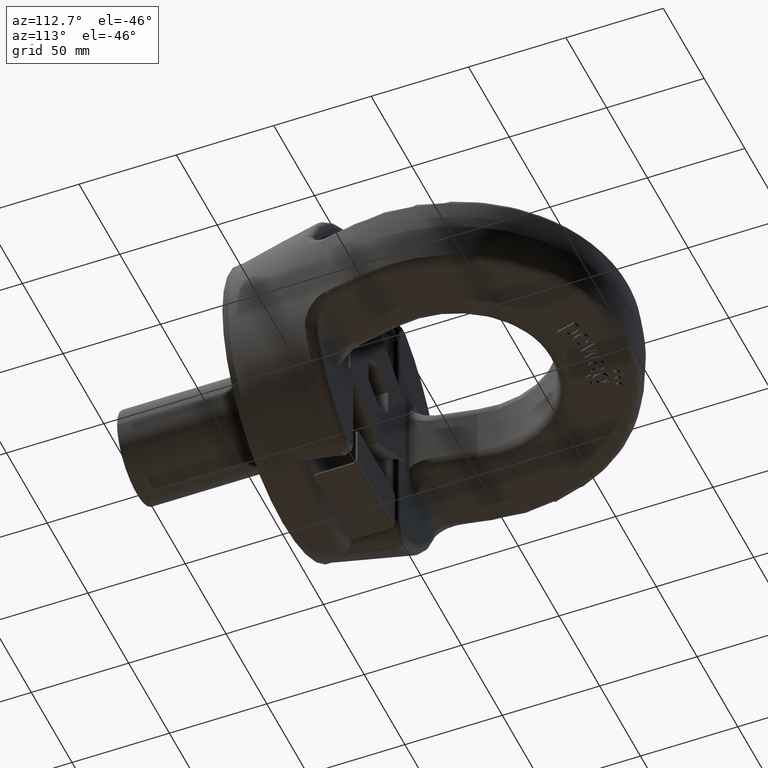
[diagram: clean part render]
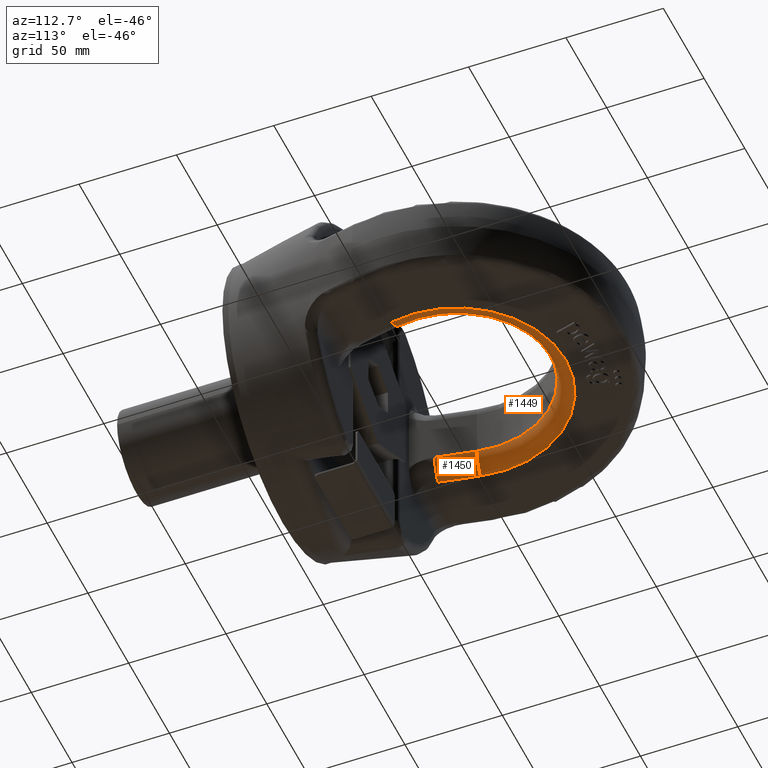
[diagram: same view with one multi-face feature highlighted, each face labeled with its STEP entity id]
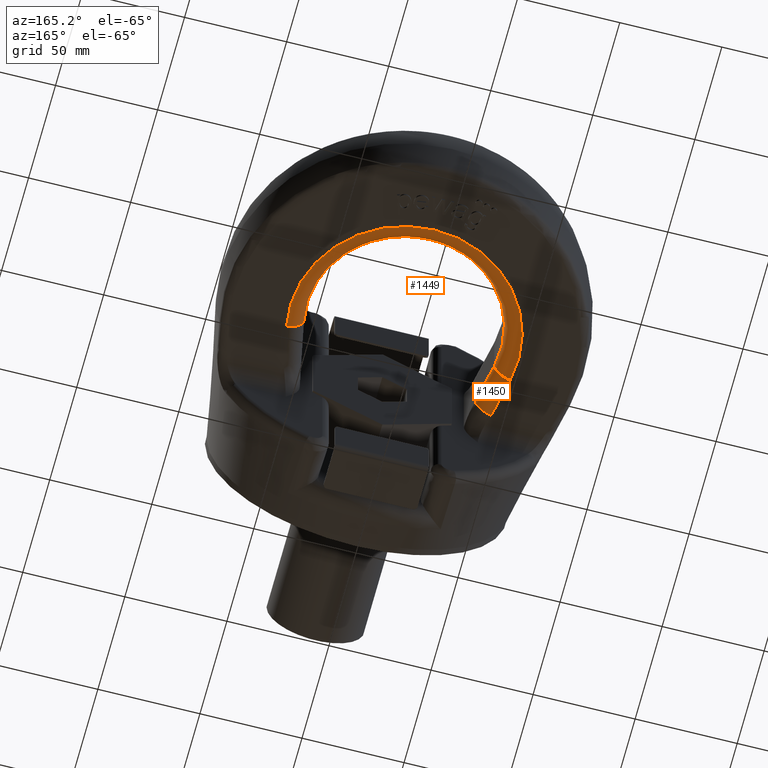
[diagram: same view with one multi-face feature highlighted, each face labeled with its STEP entity id]
A machine part, auxiliary view. The highlighted faces form ONE feature: a constant-radius fillet chain: 2 tangent blend faces with common blend radius 8.4 mm. The faces share edges in the B-rep.
A second angle (auxiliary view) of the same feature is appended — it is thin or edge-on in the first view.
Their STEP definitions:
[1] entity #1449 (Torus):
#1023=TOROIDAL_SURFACE('',#5284,55.9,8.4);
#1217=FACE_OUTER_BOUND('',#1980,.T.);
#1449=ADVANCED_FACE('',(#1217),#1023,.T.);
#1688=CIRCLE('',#5148,47.5);
#1712=CIRCLE('',#5247,55.9);
#1726=CIRCLE('',#5281,8.4);
#1727=CIRCLE('',#5283,8.4);
#1980=EDGE_LOOP('',(#3437,#3438,#3439,#3440));
#3437=ORIENTED_EDGE('',*,*,#4659,.F.);
#3438=ORIENTED_EDGE('',*,*,#4398,.F.);
#3439=ORIENTED_EDGE('',*,*,#4660,.T.);
#3440=ORIENTED_EDGE('',*,*,#4600,.F.);
#4003=VERTEX_POINT('',#6870);
#4006=VERTEX_POINT('',#6875);
#4117=VERTEX_POINT('',#8227);
#4118=VERTEX_POINT('',#8228);
#4398=EDGE_CURVE('',#4006,#4003,#1688,.T.);
#4600=EDGE_CURVE('',#4117,#4118,#1712,.T.);
#4659=EDGE_CURVE('',#4003,#4117,#1726,.T.);
#4660=EDGE_CURVE('',#4006,#4118,#1727,.T.);
#5148=AXIS2_PLACEMENT_3D('',#6876,#5511,#5512);
#5247=AXIS2_PLACEMENT_3D('',#8226,#5828,#5829);
#5281=AXIS2_PLACEMENT_3D('',#8657,#5917,#5918);
#5283=AXIS2_PLACEMENT_3D('',#8659,#5921,#5922);
#5284=AXIS2_PLACEMENT_3D('',#8660,#5923,#5924);
#5511=DIRECTION('',(2.34291072916505E-15,1.47636040508664E-16,-1.));
#5512=DIRECTION('',(-3.89240578234052E-31,1.,1.46081976924363E-16));
#5828=DIRECTION('',(-2.34291072916505E-15,-1.47636040508664E-16,1.));
#5829=DIRECTION('',(-3.30750044116591E-31,1.,1.24130481286355E-16));
#5917=DIRECTION('',(-0.195739424926945,-0.980655942484044,-4.58599998781935E-16));
#5918=DIRECTION('',(0.980655942484044,-0.195739424926944,2.27166169473153E-15));
#5921=DIRECTION('',(-0.195739424926944,0.980655942484044,-4.58599998781934E-16));
#5922=DIRECTION('',(-0.980655942484045,-0.195739424926944,-2.27166169473153E-15));
#5923=DIRECTION('',(-2.34291072916505E-15,-1.47636040508664E-16,1.));
#5924=DIRECTION('',(-3.83388853626075E-31,1.,1.34892960806906E-16));
#6870=CARTESIAN_POINT('',(46.5811572679922,80.2023773159702,-12.5999999999999));
#6875=CARTESIAN_POINT('',(-46.5811572679921,80.2023773159702,-12.6000000000001));
#6876=CARTESIAN_POINT('',(2.95206751874797E-14,89.5000000000001,-12.6));
#8226=CARTESIAN_POINT('',(4.9201125312466E-14,89.5000000000001,-21.));
#8227=CARTESIAN_POINT('',(54.8186671848581,78.5581661465839,-20.9999999999999));
#8228=CARTESIAN_POINT('',(-54.818667184858,78.5581661465839,-21.0000000000001));
#8657=CARTESIAN_POINT('',(54.8186671848581,78.5581661465839,-12.5999999999999));
#8659=CARTESIAN_POINT('',(-54.8186671848581,78.5581661465839,-12.6000000000001));
#8660=CARTESIAN_POINT('',(2.95206751874796E-14,89.5000000000001,-12.6));
[2] entity #1450 (Cylinder):
#1073=CYLINDRICAL_SURFACE('',#5286,8.4);
#1218=FACE_OUTER_BOUND('',#1981,.T.);
#1450=ADVANCED_FACE('',(#1218),#1073,.T.);
#1727=CIRCLE('',#5283,8.4);
#1728=CIRCLE('',#5285,8.4);
#1981=EDGE_LOOP('',(#3441,#3442,#3443,#3444));
#2152=LINE('',#6883,#2432);
#2242=LINE('',#8229,#2550);
#2432=VECTOR('',#5520,1.);
#2550=VECTOR('',#5830,1.);
#3441=ORIENTED_EDGE('',*,*,#4660,.F.);
#3442=ORIENTED_EDGE('',*,*,#4402,.F.);
#3443=ORIENTED_EDGE('',*,*,#4661,.F.);
#3444=ORIENTED_EDGE('',*,*,#4601,.F.);
#4006=VERTEX_POINT('',#6875);
#4008=VERTEX_POINT('',#6882);
#4118=VERTEX_POINT('',#8228);
#4119=VERTEX_POINT('',#8230);
#4402=EDGE_CURVE('',#4008,#4006,#2152,.T.);
#4601=EDGE_CURVE('',#4118,#4119,#2242,.T.);
#4660=EDGE_CURVE('',#4006,#4118,#1727,.T.);
#4661=EDGE_CURVE('',#4119,#4008,#1728,.T.);
#5283=AXIS2_PLACEMENT_3D('',#8659,#5921,#5922);
#5285=AXIS2_PLACEMENT_3D('',#8661,#5925,#5926);
#5286=AXIS2_PLACEMENT_3D('',#8662,#5927,#5928);
#5520=DIRECTION('',(-0.195739424926945,0.980655942484044,-3.13819838332299E-16));
#5830=DIRECTION('',(0.195739424926945,-0.980655942484044,3.13819838332299E-16));
#5921=DIRECTION('',(-0.195739424926944,0.980655942484044,-4.58599998781934E-16));
#5922=DIRECTION('',(-0.980655942484045,-0.195739424926944,-2.27166169473153E-15));
#5925=DIRECTION('',(0.195739424926947,-0.980655942484044,4.58599998781941E-16));
#5926=DIRECTION('',(-0.980655942484044,-0.195739424926947,-2.27166169473153E-15));
#5927=DIRECTION('',(-0.195739424926945,0.980655942484044,-3.13819838332299E-16));
#5928=DIRECTION('',(0.980655942484045,0.195739424926946,2.27166169473153E-15));
#6875=CARTESIAN_POINT('',(-46.5811572679921,80.2023773159702,-12.6000000000001));
#6882=CARTESIAN_POINT('',(-42.5775371026197,60.1442111693864,-12.6000000000001));
#6883=CARTESIAN_POINT('',(-46.5811572679921,80.2023773159702,-12.6000000000001));
#8228=CARTESIAN_POINT('',(-54.818667184858,78.5581661465839,-21.0000000000001));
#8229=CARTESIAN_POINT('',(-50.486861633754,56.8557888306136,-21.0000000000001));
#8230=CARTESIAN_POINT('',(-50.8150470194856,58.5,-21.0000000000001));
#8659=CARTESIAN_POINT('',(-54.8186671848581,78.5581661465839,-12.6000000000001));
#8661=CARTESIAN_POINT('',(-50.8150470194856,58.5,-12.6000000000001));
#8662=CARTESIAN_POINT('',(-80.7761858153042,208.605523272456,-12.6000000000002));